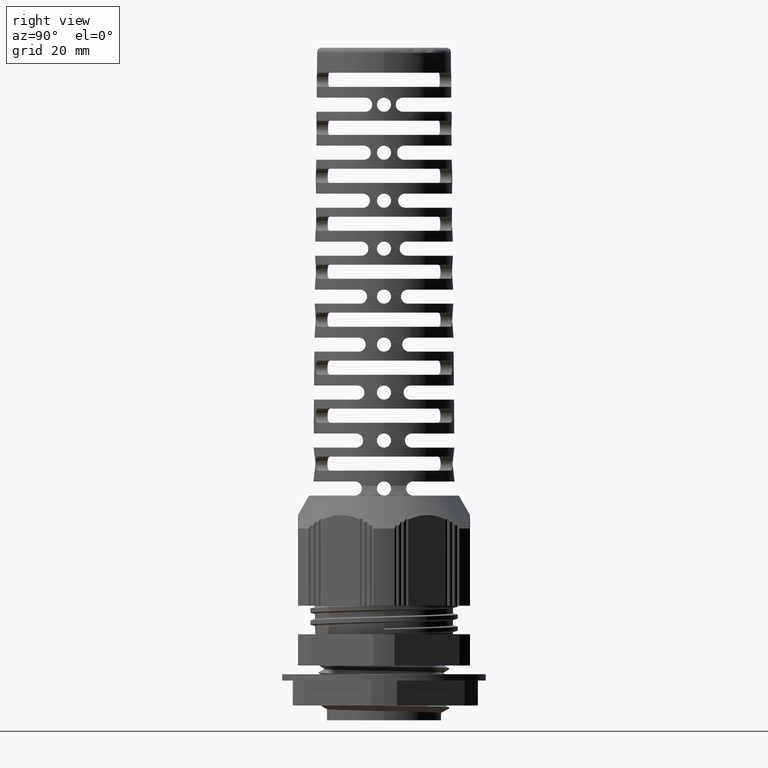
[diagram: clean part render]
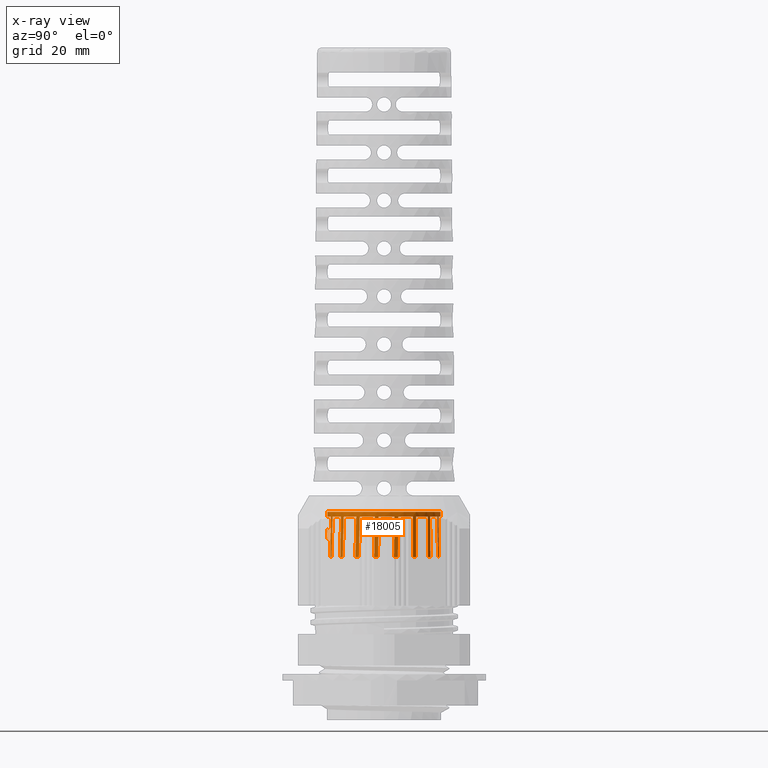
[diagram: x-ray — body ghosted, one internal face saturated and labeled with its STEP entity id]
A machine part, right view, then the same camera in x-ray: the body is ghosted and one INTERNAL B-rep face — a face not visible from any outside direction — is saturated and labeled: STEP entity #18005.
In plain terms, the highlighted conical surface has half-angle 1 deg.
Its self-contained STEP definition (entity closure, byte-faithful):
#19 = B_SPLINE_CURVE_WITH_KNOTS ( 'NONE', 3,
 ( #12706, #12711, #12725, #12697 ),
 .UNSPECIFIED., .F., .F.,
 ( 4, 4 ),
 ( 8.606371440566386500E-016, 0.007745463629420377100 ),
 .UNSPECIFIED. ) ;
#25 = B_SPLINE_CURVE_WITH_KNOTS ( 'NONE', 3,
 ( #11277, #11404, #11317, #11323 ),
 .UNSPECIFIED., .F., .F.,
 ( 4, 4 ),
 ( 0.0000000000000000000, 0.007745266584049276600 ),
 .UNSPECIFIED. ) ;
#29 = B_SPLINE_CURVE_WITH_KNOTS ( 'NONE', 3,
 ( #28067, #28081, #28082, #28083 ),
 .UNSPECIFIED., .F., .F.,
 ( 4, 4 ),
 ( 1.846204061899816400E-015, 0.007745463628746135200 ),
 .UNSPECIFIED. ) ;
#33 = B_SPLINE_CURVE_WITH_KNOTS ( 'NONE', 3,
 ( #28079, #28080, #28091, #28089 ),
 .UNSPECIFIED., .F., .F.,
 ( 4, 4 ),
 ( 2.047514077544858200E-015, 0.007745463628489268600 ),
 .UNSPECIFIED. ) ;
#39 = B_SPLINE_CURVE_WITH_KNOTS ( 'NONE', 3,
 ( #6497, #6502, #6504, #6500 ),
 .UNSPECIFIED., .F., .F.,
 ( 4, 4 ),
 ( 0.0000000000000000000, 0.007745266585278603100 ),
 .UNSPECIFIED. ) ;
#41 = B_SPLINE_CURVE_WITH_KNOTS ( 'NONE', 3,
 ( #8292, #8296, #8182, #8202 ),
 .UNSPECIFIED., .F., .F.,
 ( 4, 4 ),
 ( 0.0000000000000000000, 0.007745266585041397900 ),
 .UNSPECIFIED. ) ;
#43 = B_SPLINE_CURVE_WITH_KNOTS ( 'NONE', 3,
 ( #12607, #12603, #12609, #12611 ),
 .UNSPECIFIED., .F., .F.,
 ( 4, 4 ),
 ( 1.318846268912613700E-016, 0.007745463629418319700 ),
 .UNSPECIFIED. ) ;
#44 = B_SPLINE_CURVE_WITH_KNOTS ( 'NONE', 3,
 ( #12803, #12804, #12780, #12784 ),
 .UNSPECIFIED., .F., .F.,
 ( 4, 4 ),
 ( 2.547140953177153500E-015, 0.007745266584887284200 ),
 .UNSPECIFIED. ) ;
#50 = B_SPLINE_CURVE_WITH_KNOTS ( 'NONE', 3,
 ( #28193, #28229, #28232, #28233 ),
 .UNSPECIFIED., .F., .F.,
 ( 4, 4 ),
 ( 4.860322466063819700E-017, 0.007745463628346591100 ),
 .UNSPECIFIED. ) ;
#51 = B_SPLINE_CURVE_WITH_KNOTS ( 'NONE', 3,
 ( #11604, #11596, #11624, #11512 ),
 .UNSPECIFIED., .F., .F.,
 ( 4, 4 ),
 ( 1.728211039446828200E-015, 0.007745463628330847600 ),
 .UNSPECIFIED. ) ;
#52 = B_SPLINE_CURVE_WITH_KNOTS ( 'NONE', 3,
 ( #6484, #6493, #6487, #6488 ),
 .UNSPECIFIED., .F., .F.,
 ( 4, 4 ),
 ( 2.984423355069149100E-015, 0.007745266583814524300 ),
 .UNSPECIFIED. ) ;
#53 = B_SPLINE_CURVE_WITH_KNOTS ( 'NONE', 3,
 ( #12599, #12583, #12586, #12593 ),
 .UNSPECIFIED., .F., .F.,
 ( 4, 4 ),
 ( 1.200733890950348800E-015, 0.007745463629416220700 ),
 .UNSPECIFIED. ) ;
#57 = B_SPLINE_CURVE_WITH_KNOTS ( 'NONE', 3,
 ( #12868, #12872, #12887, #12885 ),
 .UNSPECIFIED., .F., .F.,
 ( 4, 4 ),
 ( 5.899596634123517400E-016, 0.007745463629416670900 ),
 .UNSPECIFIED. ) ;
#60 = B_SPLINE_CURVE_WITH_KNOTS ( 'NONE', 3,
 ( #28027, #28033, #28025, #28026 ),
 .UNSPECIFIED., .F., .F.,
 ( 4, 4 ),
 ( 0.0000000000000000000, 0.007745266584336102700 ),
 .UNSPECIFIED. ) ;
#61 = B_SPLINE_CURVE_WITH_KNOTS ( 'NONE', 3,
 ( #11325, #11305, #11377, #11320 ),
 .UNSPECIFIED., .F., .F.,
 ( 4, 4 ),
 ( 1.457526898192884100E-015, 0.007745463629083929200 ),
 .UNSPECIFIED. ) ;
#62 = B_SPLINE_CURVE_WITH_KNOTS ( 'NONE', 3,
 ( #11380, #11297, #11328, #11280 ),
 .UNSPECIFIED., .F., .F.,
 ( 4, 4 ),
 ( 9.772197026616723300E-015, 0.007745266583868504500 ),
 .UNSPECIFIED. ) ;
#63 = B_SPLINE_CURVE_WITH_KNOTS ( 'NONE', 3,
 ( #12874, #12890, #12875, #12886 ),
 .UNSPECIFIED., .F., .F.,
 ( 4, 4 ),
 ( 0.0000000000000000000, 0.007745266585175490300 ),
 .UNSPECIFIED. ) ;
#3774 = EDGE_LOOP ( 'NONE', ( #5747, #5755, #5611, #5562, #5714, #5558, #5517, #5735, #5582, #5718, #5520, #5579, #5543, #5670, #5651, #5643, #5588, #5682, #5505, #5539, #5631, #5663, #5590, #5617, #5635, #5633, #5646, #5601, #5629, #7315, #7328, #7303, #7329, #7287, #7314, #7280, #7272, #7313, #7298, #7316 ) ) ;
#5505 = ORIENTED_EDGE ( 'NONE', *, *, #9916, .T. ) ;
#5517 = ORIENTED_EDGE ( 'NONE', *, *, #9895, .T. ) ;
#5520 = ORIENTED_EDGE ( 'NONE', *, *, #9889, .T. ) ;
#5539 = ORIENTED_EDGE ( 'NONE', *, *, #9896, .T. ) ;
#5543 = ORIENTED_EDGE ( 'NONE', *, *, #9948, .T. ) ;
#5558 = ORIENTED_EDGE ( 'NONE', *, *, #9927, .T. ) ;
#5562 = ORIENTED_EDGE ( 'NONE', *, *, #9867, .T. ) ;
#5579 = ORIENTED_EDGE ( 'NONE', *, *, #9923, .T. ) ;
#5582 = ORIENTED_EDGE ( 'NONE', *, *, #9941, .T. ) ;
#5588 = ORIENTED_EDGE ( 'NONE', *, *, #9952, .T. ) ;
#5590 = ORIENTED_EDGE ( 'NONE', *, *, #9950, .T. ) ;
#5601 = ORIENTED_EDGE ( 'NONE', *, *, #9943, .T. ) ;
#5611 = ORIENTED_EDGE ( 'NONE', *, *, #9870, .T. ) ;
#5617 = ORIENTED_EDGE ( 'NONE', *, *, #9985, .T. ) ;
#5629 = ORIENTED_EDGE ( 'NONE', *, *, #9954, .T. ) ;
#5631 = ORIENTED_EDGE ( 'NONE', *, *, #9926, .T. ) ;
#5633 = ORIENTED_EDGE ( 'NONE', *, *, #9978, .T. ) ;
#5635 = ORIENTED_EDGE ( 'NONE', *, *, #9908, .T. ) ;
#5643 = ORIENTED_EDGE ( 'NONE', *, *, #9918, .T. ) ;
#5646 = ORIENTED_EDGE ( 'NONE', *, *, #9894, .T. ) ;
#5651 = ORIENTED_EDGE ( 'NONE', *, *, #9915, .T. ) ;
#5663 = ORIENTED_EDGE ( 'NONE', *, *, #9919, .T. ) ;
#5670 = ORIENTED_EDGE ( 'NONE', *, *, #9903, .T. ) ;
#5682 = ORIENTED_EDGE ( 'NONE', *, *, #9902, .T. ) ;
#5714 = ORIENTED_EDGE ( 'NONE', *, *, #9939, .T. ) ;
#5718 = ORIENTED_EDGE ( 'NONE', *, *, #9891, .T. ) ;
#5735 = ORIENTED_EDGE ( 'NONE', *, *, #9930, .T. ) ;
#5747 = ORIENTED_EDGE ( 'NONE', *, *, #9879, .T. ) ;
#5755 = ORIENTED_EDGE ( 'NONE', *, *, #9871, .T. ) ;
#6484 = CARTESIAN_POINT ( 'NONE',  ( 3.815180258274659200, -10.15711078988246300, 39.04349424353245700 ) ) ;
#6487 = CARTESIAN_POINT ( 'NONE',  ( 3.786548012332399800, -10.26396778647021300, 33.88116838323959000 ) ) ;
#6488 = CARTESIAN_POINT ( 'NONE',  ( 3.772297953280795600, -10.31714973085987500, 31.29999999999553900 ) ) ;
#6493 = CARTESIAN_POINT ( 'NONE',  ( 3.800841287179331100, -10.21062455853670400, 36.46233321087266400 ) ) ;
#6497 = CARTESIAN_POINT ( 'NONE',  ( 3.606267329563777000, 10.23314887737931800, 39.04349424510185400 ) ) ;
#6500 = CARTESIAN_POINT ( 'NONE',  ( 3.741988129368834800, 10.32818160450002600, 31.30000000001476600 ) ) ;
#6501 = CARTESIAN_POINT ( 'NONE',  ( -5.856426454897700800E-012, 10.98516319477641900, 31.30000000000715600 ) ) ;
#6502 = CARTESIAN_POINT ( 'NONE',  ( 3.651649606146142100, 10.26492588954519100, 36.46233321186613100 ) ) ;
#6503 = LINE ( 'NONE', #6501, #26481 ) ;
#6504 = CARTESIAN_POINT ( 'NONE',  ( 3.696887255899251800, 10.29660163291499400, 33.88116838374345700 ) ) ;
#6505 = DIRECTION ( 'NONE',  ( 0.0000000000000000000, 0.01745240643728329300, -0.9998476951563911600 ) ) ;
#6524 = CARTESIAN_POINT ( 'NONE',  ( -5.856426454897700800E-012, -3.471528620124786400E-011, 31.29999999999844100 ) ) ;
#6525 = DIRECTION ( 'NONE',  ( -0.0000000000000000000, -0.0000000000000000000, 1.000000000000000000 ) ) ;
#6526 = DIRECTION ( 'NONE',  ( -1.000000000000000000, 0.0000000000000000000, 0.0000000000000000000 ) ) ;
#7035 = VERTEX_POINT ( 'NONE', #13496 ) ;
#7036 = VERTEX_POINT ( 'NONE', #13574 ) ;
#7037 = VERTEX_POINT ( 'NONE', #13529 ) ;
#7039 = VERTEX_POINT ( 'NONE', #13552 ) ;
#7041 = VERTEX_POINT ( 'NONE', #13553 ) ;
#7042 = VERTEX_POINT ( 'NONE', #13557 ) ;
#7044 = VERTEX_POINT ( 'NONE', #13575 ) ;
#7045 = VERTEX_POINT ( 'NONE', #13563 ) ;
#7046 = VERTEX_POINT ( 'NONE', #13572 ) ;
#7047 = VERTEX_POINT ( 'NONE', #13581 ) ;
#7048 = VERTEX_POINT ( 'NONE', #13525 ) ;
#7049 = VERTEX_POINT ( 'NONE', #13532 ) ;
#7052 = VERTEX_POINT ( 'NONE', #13549 ) ;
#7053 = VERTEX_POINT ( 'NONE', #13550 ) ;
#7055 = VERTEX_POINT ( 'NONE', #13547 ) ;
#7056 = VERTEX_POINT ( 'NONE', #13551 ) ;
#7057 = VERTEX_POINT ( 'NONE', #13578 ) ;
#7058 = VERTEX_POINT ( 'NONE', #13544 ) ;
#7064 = VERTEX_POINT ( 'NONE', #13533 ) ;
#7065 = VERTEX_POINT ( 'NONE', #13579 ) ;
#7067 = VERTEX_POINT ( 'NONE', #13559 ) ;
#7069 = VERTEX_POINT ( 'NONE', #13530 ) ;
#7071 = VERTEX_POINT ( 'NONE', #13531 ) ;
#7075 = VERTEX_POINT ( 'NONE', #13543 ) ;
#7076 = VERTEX_POINT ( 'NONE', #13561 ) ;
#7077 = VERTEX_POINT ( 'NONE', #13537 ) ;
#7078 = VERTEX_POINT ( 'NONE', #13526 ) ;
#7080 = VERTEX_POINT ( 'NONE', #13564 ) ;
#7084 = VERTEX_POINT ( 'NONE', #13567 ) ;
#7087 = VERTEX_POINT ( 'NONE', #13583 ) ;
#7091 = VERTEX_POINT ( 'NONE', #13527 ) ;
#7092 = VERTEX_POINT ( 'NONE', #13585 ) ;
#7093 = VERTEX_POINT ( 'NONE', #13569 ) ;
#7094 = VERTEX_POINT ( 'NONE', #13586 ) ;
#7095 = VERTEX_POINT ( 'NONE', #13535 ) ;
#7103 = VERTEX_POINT ( 'NONE', #14410 ) ;
#7115 = VERTEX_POINT ( 'NONE', #14150 ) ;
#7119 = VERTEX_POINT ( 'NONE', #14163 ) ;
#7122 = VERTEX_POINT ( 'NONE', #14154 ) ;
#7147 = VERTEX_POINT ( 'NONE', #14176 ) ;
#7272 = ORIENTED_EDGE ( 'NONE', *, *, #9946, .T. ) ;
#7280 = ORIENTED_EDGE ( 'NONE', *, *, #9934, .T. ) ;
#7287 = ORIENTED_EDGE ( 'NONE', *, *, #10003, .T. ) ;
#7298 = ORIENTED_EDGE ( 'NONE', *, *, #9907, .T. ) ;
#7303 = ORIENTED_EDGE ( 'NONE', *, *, #10005, .T. ) ;
#7313 = ORIENTED_EDGE ( 'NONE', *, *, #9958, .T. ) ;
#7314 = ORIENTED_EDGE ( 'NONE', *, *, #9893, .T. ) ;
#7315 = ORIENTED_EDGE ( 'NONE', *, *, #9962, .T. ) ;
#7316 = ORIENTED_EDGE ( 'NONE', *, *, #9935, .F. ) ;
#7328 = ORIENTED_EDGE ( 'NONE', *, *, #9964, .T. ) ;
#7329 = ORIENTED_EDGE ( 'NONE', *, *, #9924, .T. ) ;
#7620 = CARTESIAN_POINT ( 'NONE',  ( -5.856426454897700800E-012, -3.471528620124786400E-011, 31.30000000000221400 ) ) ;
#7641 = DIRECTION ( 'NONE',  ( -0.0000000000000000000, -0.0000000000000000000, 1.000000000000000000 ) ) ;
#7777 = DIRECTION ( 'NONE',  ( -1.000000000000000000, -1.687538997430220000E-014, 0.0000000000000000000 ) ) ;
#8182 = CARTESIAN_POINT ( 'NONE',  ( 9.450507890757647200, 5.511341141392184900, 33.88116838365995400 ) ) ;
#8202 = CARTESIAN_POINT ( 'NONE',  ( 9.505356378706052200, 5.506542520486944700, 31.30000000000811200 ) ) ;
#8247 = CARTESIAN_POINT ( 'NONE',  ( -5.856426454897700800E-012, -3.471528620124786400E-011, 31.29999999999888500 ) ) ;
#8265 = DIRECTION ( 'NONE',  ( -0.0000000000000000000, -0.0000000000000000000, 1.000000000000000000 ) ) ;
#8273 = DIRECTION ( 'NONE',  ( -1.000000000000000000, 0.0000000000000000000, 0.0000000000000000000 ) ) ;
#8292 = CARTESIAN_POINT ( 'NONE',  ( 9.340302354705176700, 5.520982876451005200, 39.04349424480187000 ) ) ;
#8296 = CARTESIAN_POINT ( 'NONE',  ( 9.395493065180703600, 5.516154314954239800, 36.46233321170247900 ) ) ;
#9867 = EDGE_CURVE ( 'NONE', #7077, #7103, #28306, .T. ) ;
#9870 = EDGE_CURVE ( 'NONE', #7044, #7077, #26446, .T. ) ;
#9871 = EDGE_CURVE ( 'NONE', #7035, #7044, #19279, .T. ) ;
#9879 = EDGE_CURVE ( 'NONE', #7067, #7035, #26440, .T. ) ;
#9889 = EDGE_CURVE ( 'NONE', #7052, #7069, #26453, .T. ) ;
#9891 = EDGE_CURVE ( 'NONE', #7049, #7052, #50, .T. ) ;
#9893 = EDGE_CURVE ( 'NONE', #7080, #7048, #26445, .T. ) ;
#9894 = EDGE_CURVE ( 'NONE', #7039, #7147, #26401, .T. ) ;
#9895 = EDGE_CURVE ( 'NONE', #7046, #7093, #26414, .T. ) ;
#9896 = EDGE_CURVE ( 'NONE', #7078, #7047, #60, .T. ) ;
#9902 = EDGE_CURVE ( 'NONE', #7065, #7037, #29, .T. ) ;
#9903 = EDGE_CURVE ( 'NONE', #7076, #7071, #33, .T. ) ;
#9907 = EDGE_CURVE ( 'NONE', #7053, #7055, #26470, .T. ) ;
#9908 = EDGE_CURVE ( 'NONE', #7045, #7075, #26488, .T. ) ;
#9915 = EDGE_CURVE ( 'NONE', #7071, #7091, #26490, .T. ) ;
#9916 = EDGE_CURVE ( 'NONE', #7037, #7078, #26471, .T. ) ;
#9918 = EDGE_CURVE ( 'NONE', #7091, #7056, #25, .T. ) ;
#9919 = EDGE_CURVE ( 'NONE', #7122, #7036, #61, .T. ) ;
#9923 = EDGE_CURVE ( 'NONE', #7069, #7094, #62, .T. ) ;
#9924 = EDGE_CURVE ( 'NONE', #7041, #7115, #26501, .T. ) ;
#9926 = EDGE_CURVE ( 'NONE', #7047, #7122, #26494, .T. ) ;
#9927 = EDGE_CURVE ( 'NONE', #7064, #7046, #51, .T. ) ;
#9930 = EDGE_CURVE ( 'NONE', #7093, #7058, #52, .T. ) ;
#9934 = EDGE_CURVE ( 'NONE', #7048, #7042, #39, .T. ) ;
#9935 = EDGE_CURVE ( 'NONE', #7067, #7055, #6503, .T. ) ;
#9939 = EDGE_CURVE ( 'NONE', #7103, #7064, #26506, .T. ) ;
#9941 = EDGE_CURVE ( 'NONE', #7058, #7049, #26507, .T. ) ;
#9943 = EDGE_CURVE ( 'NONE', #7147, #7119, #41, .T. ) ;
#9946 = EDGE_CURVE ( 'NONE', #7042, #7095, #26486, .T. ) ;
#9948 = EDGE_CURVE ( 'NONE', #7094, #7076, #26516, .T. ) ;
#9950 = EDGE_CURVE ( 'NONE', #7036, #7087, #26462, .T. ) ;
#9952 = EDGE_CURVE ( 'NONE', #7056, #7065, #26519, .T. ) ;
#9954 = EDGE_CURVE ( 'NONE', #7119, #7057, #26537, .T. ) ;
#9958 = EDGE_CURVE ( 'NONE', #7095, #7053, #53, .T. ) ;
#9962 = EDGE_CURVE ( 'NONE', #7057, #7084, #43, .T. ) ;
#9964 = EDGE_CURVE ( 'NONE', #7084, #7092, #26548, .T. ) ;
#9978 = EDGE_CURVE ( 'NONE', #7075, #7039, #19, .T. ) ;
#9985 = EDGE_CURVE ( 'NONE', #7087, #7045, #44, .T. ) ;
#10003 = EDGE_CURVE ( 'NONE', #7115, #7080, #57, .T. ) ;
#10005 = EDGE_CURVE ( 'NONE', #7092, #7041, #63, .T. ) ;
#11269 = CARTESIAN_POINT ( 'NONE',  ( -5.856426454897700800E-012, -3.471528620124786400E-011, 31.30000000001187400 ) ) ;
#11272 = DIRECTION ( 'NONE',  ( -0.0000000000000000000, 3.158302603635797300E-016, 1.000000000000000000 ) ) ;
#11277 = CARTESIAN_POINT ( 'NONE',  ( 9.451462602263662300, -5.328447680005238500, 39.04349424378695900 ) ) ;
#11280 = CARTESIAN_POINT ( 'NONE',  ( 7.073473579748346100, -8.404747582987763400, 31.29999999999687100 ) ) ;
#11294 = DIRECTION ( 'NONE',  ( 0.0000000000000000000, -1.000000000000000000, -6.913312728224621600E-013 ) ) ;
#11297 = CARTESIAN_POINT ( 'NONE',  ( 7.063861785278448700, -8.294884269477012900, 36.46233321091001000 ) ) ;
#11305 = CARTESIAN_POINT ( 'NONE',  ( 10.88410196873541100, -1.106180100410499000, 33.88117012204697400 ) ) ;
#11309 = DIRECTION ( 'NONE',  ( 0.0000000000000000000, -1.000000000000000000, -6.913312728224621600E-013 ) ) ;
#11317 = CARTESIAN_POINT ( 'NONE',  ( 9.498215382784360700, -5.428709341381376100, 33.88116838332118200 ) ) ;
#11320 = CARTESIAN_POINT ( 'NONE',  ( 10.80160086775101800, -1.023678999429673800, 39.04349424428910000 ) ) ;
#11323 = CARTESIAN_POINT ( 'NONE',  ( 9.521483899147902700, -5.478608835751201900, 31.29999999999887100 ) ) ;
#11325 = CARTESIAN_POINT ( 'NONE',  ( 10.92509928517197100, -1.147177416845273300, 31.30000000000701700 ) ) ;
#11328 = CARTESIAN_POINT ( 'NONE',  ( 7.068674958841803000, -8.349899095046641400, 33.88116838325894500 ) ) ;
#11345 = CARTESIAN_POINT ( 'NONE',  ( -1.713906794265085400E-012, -5.361072570953570400E-011, 39.04349424395232400 ) ) ;
#11352 = CARTESIAN_POINT ( 'NONE',  ( -1.713906794265085400E-012, -5.361072570935822900E-011, 39.04349424369561900 ) ) ;
#11377 = CARTESIAN_POINT ( 'NONE',  ( 10.84293935473652200, -1.065017486413395900, 36.46233500514544100 ) ) ;
#11380 = CARTESIAN_POINT ( 'NONE',  ( 7.059033223780659200, -8.239693559011962900, 39.04349424359455200 ) ) ;
#11386 = DIRECTION ( 'NONE',  ( 0.0000000000000000000, -6.913358774340849800E-013, 1.000000000000000000 ) ) ;
#11388 = DIRECTION ( 'NONE',  ( 0.0000000000000000000, -6.913358774340849800E-013, 1.000000000000000000 ) ) ;
#11404 = CARTESIAN_POINT ( 'NONE',  ( 9.474876300577053100, -5.378658518071247000, 36.46233321103250100 ) ) ;
#11512 = CARTESIAN_POINT ( 'NONE',  ( 0.8675512913877208000, -10.81526027231745600, 39.04349424352963600 ) ) ;
#11543 = CARTESIAN_POINT ( 'NONE',  ( -5.856426454897700800E-012, -3.471528620124786400E-011, 31.30000000000465800 ) ) ;
#11546 = DIRECTION ( 'NONE',  ( -1.000000000000000000, 0.0000000000000000000, 0.0000000000000000000 ) ) ;
#11571 = DIRECTION ( 'NONE',  ( 1.865174681370266100E-014, 1.000000000000000000, 0.0000000000000000000 ) ) ;
#11578 = DIRECTION ( 'NONE',  ( -0.0000000000000000000, -0.0000000000000000000, 1.000000000000000000 ) ) ;
#11596 = CARTESIAN_POINT ( 'NONE',  ( 0.8006297333517146100, -10.91083416203108500, 33.88117012178953800 ) ) ;
#11604 = CARTESIAN_POINT ( 'NONE',  ( 0.7673743675627440200, -10.95832774639429600, 31.30000000000084600 ) ) ;
#11624 = CARTESIAN_POINT ( 'NONE',  ( 0.8340191818411499800, -10.86314908772646400, 36.46233500463701200 ) ) ;
#12583 = CARTESIAN_POINT ( 'NONE',  ( 2.979379211491540500, 10.52666184475146600, 33.88117012216484600 ) ) ;
#12586 = CARTESIAN_POINT ( 'NONE',  ( 2.931694137182255600, 10.49327239625823100, 36.46233500537404400 ) ) ;
#12593 = CARTESIAN_POINT ( 'NONE',  ( 2.883805321764701300, 10.45974028670514100, 39.04349424473232900 ) ) ;
#12599 = CARTESIAN_POINT ( 'NONE',  ( 3.026872795859451200, 10.55991721054426200, 31.30000000001150100 ) ) ;
#12603 = CARTESIAN_POINT ( 'NONE',  ( 9.048744694094550000, 6.148782769048160000, 33.88117012216298500 ) ) ;
#12607 = CARTESIAN_POINT ( 'NONE',  ( 9.106503027570354900, 6.143729569646660900, 31.30000000001026500 ) ) ;
#12609 = CARTESIAN_POINT ( 'NONE',  ( 8.990753484114701900, 6.153856342503764200, 36.46233500537288600 ) ) ;
#12611 = CARTESIAN_POINT ( 'NONE',  ( 8.932514498631478600, 6.158951593507012500, 39.04349424468547600 ) ) ;
#12632 = DIRECTION ( 'NONE',  ( 0.0000000000000000000, -6.913358774340849800E-013, 1.000000000000000000 ) ) ;
#12636 = DIRECTION ( 'NONE',  ( 0.0000000000000000000, -1.000000000000000000, -6.913312728224621600E-013 ) ) ;
#12638 = CARTESIAN_POINT ( 'NONE',  ( -1.713906794265085400E-012, -5.361072570999983700E-011, 39.04349424462368700 ) ) ;
#12697 = CARTESIAN_POINT ( 'NONE',  ( 10.50030346618669200, 2.732421475114476200, 39.04349424464975700 ) ) ;
#12706 = CARTESIAN_POINT ( 'NONE',  ( 10.65859296414783600, 2.658609870015037600, 31.30000000000882200 ) ) ;
#12711 = CARTESIAN_POINT ( 'NONE',  ( 10.60604618037522300, 2.683112837697837300, 33.88117012216150000 ) ) ;
#12725 = CARTESIAN_POINT ( 'NONE',  ( 10.55328753260709500, 2.707714599184232200, 36.46233500537208300 ) ) ;
#12780 = CARTESIAN_POINT ( 'NONE',  ( 10.76556221473152800, 1.946702537901484200, 33.88116838360613800 ) ) ;
#12784 = CARTESIAN_POINT ( 'NONE',  ( 10.81546170910718500, 1.923434021537838300, 31.30000000000565700 ) ) ;
#12803 = CARTESIAN_POINT ( 'NONE',  ( 10.66530055334632000, 1.993455318421180300, 39.04349424460966100 ) ) ;
#12804 = CARTESIAN_POINT ( 'NONE',  ( 10.71551139141555000, 1.970041620108902600, 36.46233321159730400 ) ) ;
#12868 = CARTESIAN_POINT ( 'NONE',  ( 6.456034428196511900, 8.887824811385531400, 31.30000000001124100 ) ) ;
#12872 = CARTESIAN_POINT ( 'NONE',  ( 6.400031052456800000, 8.872818752080874600, 33.88117012216413600 ) ) ;
#12874 = CARTESIAN_POINT ( 'NONE',  ( 6.888725843904850000, 8.382598418545065000, 39.04349424497267800 ) ) ;
#12875 = CARTESIAN_POINT ( 'NONE',  ( 6.995582840516035200, 8.411230664496217800, 33.88116838370782300 ) ) ;
#12885 = CARTESIAN_POINT ( 'NONE',  ( 6.287332452667446800, 8.842621253275629200, 39.04349424471412500 ) ) ;
#12886 = CARTESIAN_POINT ( 'NONE',  ( 7.048764784913180000, 8.425480723551130400, 31.30000000001351900 ) ) ;
#12887 = CARTESIAN_POINT ( 'NONE',  ( 6.343801876047794300, 8.857752189669227500, 36.46233500537349000 ) ) ;
#12890 = CARTESIAN_POINT ( 'NONE',  ( 6.942239612575016300, 8.396937389645966500, 36.46233321179615000 ) ) ;
#13496 = CARTESIAN_POINT ( 'NONE',  ( -5.855090405648399700E-012, -10.83417688321663700, 39.95000000001447700 ) ) ;
#13525 = CARTESIAN_POINT ( 'NONE',  ( 3.606267329563777000, 10.23314887737931800, 39.04349424510185400 ) ) ;
#13526 = CARTESIAN_POINT ( 'NONE',  ( 10.70390610218139900, -1.774512371283909000, 39.04349424408093200 ) ) ;
#13527 = CARTESIAN_POINT ( 'NONE',  ( 9.451462602263662300, -5.328447680005238500, 39.04349424378695900 ) ) ;
#13529 = CARTESIAN_POINT ( 'NONE',  ( 9.800065790014103900, -4.656308678756256600, 39.04349424394907700 ) ) ;
#13530 = CARTESIAN_POINT ( 'NONE',  ( 7.059033223780659200, -8.239693559011962900, 39.04349424359455200 ) ) ;
#13531 = CARTESIAN_POINT ( 'NONE',  ( 7.616498144434142900, -7.727318811634067900, 39.04349424369023300 ) ) ;
#13532 = CARTESIAN_POINT ( 'NONE',  ( 4.469064856993862900, -10.03500222826399300, 31.29999999999854400 ) ) ;
#13533 = CARTESIAN_POINT ( 'NONE',  ( 0.7673743675627440200, -10.95832774639429600, 31.30000000000084600 ) ) ;
#13535 = CARTESIAN_POINT ( 'NONE',  ( 3.026872795859451200, 10.55991721054426200, 31.30000000001150100 ) ) ;
#13537 = CARTESIAN_POINT ( 'NONE',  ( 0.1111602475592623500, -10.84943055650598400, 39.04349424375350000 ) ) ;
#13543 = CARTESIAN_POINT ( 'NONE',  ( 10.65859296414783600, 2.658609870015037600, 31.30000000000882200 ) ) ;
#13544 = CARTESIAN_POINT ( 'NONE',  ( 3.772297953280795600, -10.31714973085987500, 31.29999999999553900 ) ) ;
#13547 = CARTESIAN_POINT ( 'NONE',  ( -5.856426454897700800E-012, 10.84999999996528100, 39.04349424462822100 ) ) ;
#13549 = CARTESIAN_POINT ( 'NONE',  ( 4.514268415094321100, -9.866300252755550600, 39.04349424354478500 ) ) ;
#13550 = CARTESIAN_POINT ( 'NONE',  ( 2.883805321764701300, 10.45974028670514100, 39.04349424473232900 ) ) ;
#13551 = CARTESIAN_POINT ( 'NONE',  ( 9.521483899147902700, -5.478608835751201900, 31.29999999999887100 ) ) ;
#13552 = CARTESIAN_POINT ( 'NONE',  ( 10.50030346618669200, 2.732421475114476200, 39.04349424464975700 ) ) ;
#13553 = CARTESIAN_POINT ( 'NONE',  ( 7.048764784913180000, 8.425480723551130400, 31.30000000001351900 ) ) ;
#13557 = CARTESIAN_POINT ( 'NONE',  ( 3.741988129368834800, 10.32818160450002600, 31.30000000001476600 ) ) ;
#13559 = CARTESIAN_POINT ( 'NONE',  ( -5.856426454897700800E-012, 10.83417688314721300, 39.95000000001447700 ) ) ;
#13561 = CARTESIAN_POINT ( 'NONE',  ( 7.631720168298579100, -7.901307340553114700, 31.30000000000331200 ) ) ;
#13563 = CARTESIAN_POINT ( 'NONE',  ( 10.81546170910718500, 1.923434021537838300, 31.30000000000565700 ) ) ;
#13564 = CARTESIAN_POINT ( 'NONE',  ( 6.287332452667446800, 8.842621253275629200, 39.04349424471412500 ) ) ;
#13567 = CARTESIAN_POINT ( 'NONE',  ( 8.932514498631478600, 6.158951593507012500, 39.04349424468547600 ) ) ;
#13569 = CARTESIAN_POINT ( 'NONE',  ( 3.815180258274659200, -10.15711078988246300, 39.04349424353245700 ) ) ;
#13572 = CARTESIAN_POINT ( 'NONE',  ( 0.8675512913877208000, -10.81526027231745600, 39.04349424352963600 ) ) ;
#13574 = CARTESIAN_POINT ( 'NONE',  ( 10.80160086775101800, -1.023678999429673800, 39.04349424428910000 ) ) ;
#13575 = CARTESIAN_POINT ( 'NONE',  ( -5.855097713120623600E-012, -10.85000000005181600, 39.04349424364806300 ) ) ;
#13578 = CARTESIAN_POINT ( 'NONE',  ( 9.106503027570354900, 6.143729569646660900, 31.30000000001026500 ) ) ;
#13579 = CARTESIAN_POINT ( 'NONE',  ( 9.873877395114282900, -4.814598176702158000, 31.30000000000511700 ) ) ;
#13581 = CARTESIAN_POINT ( 'NONE',  ( 10.82106273817677800, -1.891669007273935300, 31.30000000000132600 ) ) ;
#13583 = CARTESIAN_POINT ( 'NONE',  ( 10.66530055334632000, 1.993455318421180300, 39.04349424460966100 ) ) ;
#13585 = CARTESIAN_POINT ( 'NONE',  ( 6.888725843904850000, 8.382598418545065000, 39.04349424497267800 ) ) ;
#13586 = CARTESIAN_POINT ( 'NONE',  ( 7.073473579748346100, -8.404747582987763400, 31.29999999999687100 ) ) ;
#14150 = CARTESIAN_POINT ( 'NONE',  ( 6.456034428196511900, 8.887824811385531400, 31.30000000001124100 ) ) ;
#14154 = CARTESIAN_POINT ( 'NONE',  ( 10.92509928517197100, -1.147177416845273300, 31.30000000000701700 ) ) ;
#14163 = CARTESIAN_POINT ( 'NONE',  ( 9.505356378706052200, 5.506542520486944700, 31.30000000000811200 ) ) ;
#14176 = CARTESIAN_POINT ( 'NONE',  ( 9.340302354705176700, 5.520982876451005200, 39.04349424480187000 ) ) ;
#14410 = CARTESIAN_POINT ( 'NONE',  ( 0.01612752045862704500, -10.98515135628466800, 31.29999999999509400 ) ) ;
#15497 = AXIS2_PLACEMENT_3D ( 'NONE', #24238, #24242, #24228 ) ;
#15509 = CONICAL_SURFACE ( 'NONE', #15497, 10.98516319481113400, 0.01745329251994339300 ) ;
#18005 = ADVANCED_FACE ( 'NONE', ( #24273 ), #15509, .T. ) ;
#18208 = DIRECTION ( 'NONE',  ( 0.0000000000000000000, -6.913358774340849800E-013, 1.000000000000000000 ) ) ;
#18212 = DIRECTION ( 'NONE',  ( 0.0000000000000000000, -1.000000000000000000, -6.913312728224621600E-013 ) ) ;
#18234 = CARTESIAN_POINT ( 'NONE',  ( -1.713906794265085400E-012, -5.361072570976903400E-011, 39.04349424428983900 ) ) ;
#18236 = CARTESIAN_POINT ( 'NONE',  ( -5.856426454897700800E-012, -3.471528620124786400E-011, 31.30000000001309600 ) ) ;
#18242 = DIRECTION ( 'NONE',  ( -0.0000000000000000000, 3.158302603635797300E-016, 1.000000000000000000 ) ) ;
#18248 = CARTESIAN_POINT ( 'NONE',  ( -5.856426454897700800E-012, -3.471528620124786400E-011, 31.30000000000021700 ) ) ;
#18250 = DIRECTION ( 'NONE',  ( -0.0000000000000000000, -0.0000000000000000000, 1.000000000000000000 ) ) ;
#18251 = DIRECTION ( 'NONE',  ( -1.000000000000000000, 1.509903313490204100E-014, 0.0000000000000000000 ) ) ;
#18253 = DIRECTION ( 'NONE',  ( -1.953992523340277100E-014, 1.000000000000000000, 0.0000000000000000000 ) ) ;
#19264 = CARTESIAN_POINT ( 'NONE',  ( 0.1111602475592623500, -10.84943055650598400, 39.04349424375350000 ) ) ;
#19267 = CARTESIAN_POINT ( 'NONE',  ( 0.07938323540648333000, -10.89481283307040900, 36.46233321116673700 ) ) ;
#19275 = CARTESIAN_POINT ( 'NONE',  ( 0.04770749204017161300, -10.94005048281929700, 33.88116838338640200 ) ) ;
#19277 = CARTESIAN_POINT ( 'NONE',  ( 0.01612752045862704500, -10.98515135628466800, 31.29999999999509400 ) ) ;
#19279 = LINE ( 'NONE', #19290, #26418 ) ;
#19288 = DIRECTION ( 'NONE',  ( 0.0000000000000000000, -1.000000000000000000, -6.913312728224621600E-013 ) ) ;
#19290 = CARTESIAN_POINT ( 'NONE',  ( -5.855081160403236900E-012, -10.98516319484585000, 31.30000000000717000 ) ) ;
#19291 = CARTESIAN_POINT ( 'NONE',  ( -1.713906794265085400E-012, -5.361072570933054400E-011, 39.04349424365556600 ) ) ;
#19293 = DIRECTION ( 'NONE',  ( 0.0000000000000000000, -6.913358774340849800E-013, 1.000000000000000000 ) ) ;
#19294 = DIRECTION ( 'NONE',  ( 2.137303368083802900E-018, -0.01745240643728392500, -0.9998476951563911600 ) ) ;
#24228 = DIRECTION ( 'NONE',  ( 0.0000000000000000000, 1.000000000000000000, -6.316605207271595600E-016 ) ) ;
#24238 = CARTESIAN_POINT ( 'NONE',  ( -5.856426454897700800E-012, -3.471528620124786400E-011, 31.30000000000716300 ) ) ;
#24242 = DIRECTION ( 'NONE',  ( 0.0000000000000000000, -3.158302603635797300E-016, -1.000000000000000000 ) ) ;
#24273 = FACE_OUTER_BOUND ( 'NONE', #3774, .T. ) ;
#26401 = CIRCLE ( 'NONE', #26403, 10.85000000000000000 ) ;
#26403 = AXIS2_PLACEMENT_3D ( 'NONE', #28246, #28240, #28253 ) ;
#26413 = AXIS2_PLACEMENT_3D ( 'NONE', #28191, #28227, #28228 ) ;
#26414 = CIRCLE ( 'NONE', #26441, 10.85000000000000000 ) ;
#26418 = VECTOR ( 'NONE', #19294, 1000.000000000000100 ) ;
#26438 = AXIS2_PLACEMENT_3D ( 'NONE', #28272, #28274, #28281 ) ;
#26440 = CIRCLE ( 'NONE', #26438, 10.83417688318192500 ) ;
#26441 = AXIS2_PLACEMENT_3D ( 'NONE', #28262, #28260, #28224 ) ;
#26444 = AXIS2_PLACEMENT_3D ( 'NONE', #19291, #19293, #19288 ) ;
#26445 = CIRCLE ( 'NONE', #26450, 10.85000000000000000 ) ;
#26446 = CIRCLE ( 'NONE', #26444, 10.85000000000000000 ) ;
#26450 = AXIS2_PLACEMENT_3D ( 'NONE', #28248, #28238, #28247 ) ;
#26453 = CIRCLE ( 'NONE', #26413, 10.85000000000000000 ) ;
#26462 = CIRCLE ( 'NONE', #26463, 10.85000000000000000 ) ;
#26463 = AXIS2_PLACEMENT_3D ( 'NONE', #18234, #18208, #18212 ) ;
#26464 = AXIS2_PLACEMENT_3D ( 'NONE', #28199, #28211, #28212 ) ;
#26470 = CIRCLE ( 'NONE', #26499, 10.85000000000000000 ) ;
#26471 = CIRCLE ( 'NONE', #26474, 10.85000000000000000 ) ;
#26474 = AXIS2_PLACEMENT_3D ( 'NONE', #11345, #11386, #11294 ) ;
#26476 = AXIS2_PLACEMENT_3D ( 'NONE', #11543, #11578, #11546 ) ;
#26479 = AXIS2_PLACEMENT_3D ( 'NONE', #11352, #11388, #11309 ) ;
#26481 = VECTOR ( 'NONE', #6505, 1000.000000000000100 ) ;
#26482 = AXIS2_PLACEMENT_3D ( 'NONE', #8247, #8265, #8273 ) ;
#26485 = AXIS2_PLACEMENT_3D ( 'NONE', #6524, #6525, #6526 ) ;
#26486 = CIRCLE ( 'NONE', #26487, 10.98516319481103100 ) ;
#26487 = AXIS2_PLACEMENT_3D ( 'NONE', #18236, #18242, #18253 ) ;
#26488 = CIRCLE ( 'NONE', #26464, 10.98516319481113300 ) ;
#26490 = CIRCLE ( 'NONE', #26479, 10.85000000000000000 ) ;
#26494 = CIRCLE ( 'NONE', #26476, 10.98516319481117700 ) ;
#26495 = AXIS2_PLACEMENT_3D ( 'NONE', #11269, #11272, #11571 ) ;
#26499 = AXIS2_PLACEMENT_3D ( 'NONE', #28123, #28156, #28164 ) ;
#26501 = CIRCLE ( 'NONE', #26495, 10.98516319481105400 ) ;
#26506 = CIRCLE ( 'NONE', #26485, 10.98516319481128500 ) ;
#26507 = CIRCLE ( 'NONE', #26482, 10.98516319481127800 ) ;
#26516 = CIRCLE ( 'NONE', #26517, 10.98516319481125500 ) ;
#26517 = AXIS2_PLACEMENT_3D ( 'NONE', #18248, #18250, #18251 ) ;
#26519 = CIRCLE ( 'NONE', #26522, 10.98516319481122000 ) ;
#26522 = AXIS2_PLACEMENT_3D ( 'NONE', #7620, #7641, #7777 ) ;
#26527 = AXIS2_PLACEMENT_3D ( 'NONE', #12638, #12632, #12636 ) ;
#26537 = CIRCLE ( 'NONE', #26541, 10.98516319481109000 ) ;
#26541 = AXIS2_PLACEMENT_3D ( 'NONE', #28239, #28234, #28261 ) ;
#26548 = CIRCLE ( 'NONE', #26527, 10.85000000000000000 ) ;
#28025 = CARTESIAN_POINT ( 'NONE',  ( 10.78213085283554000, -1.852737121934481000, 33.88116838341922200 ) ) ;
#28026 = CARTESIAN_POINT ( 'NONE',  ( 10.82106273817677800, -1.891669007273935300, 31.30000000000132600 ) ) ;
#28027 = CARTESIAN_POINT ( 'NONE',  ( 10.70390610218139900, -1.774512371283909000, 39.04349424408093200 ) ) ;
#28033 = CARTESIAN_POINT ( 'NONE',  ( 10.74308089974578300, -1.813687168846508200, 36.46233321122614500 ) ) ;
#28067 = CARTESIAN_POINT ( 'NONE',  ( 9.873877395114282900, -4.814598176702158000, 31.30000000000511700 ) ) ;
#28079 = CARTESIAN_POINT ( 'NONE',  ( 7.631720168298579100, -7.901307340553114700, 31.30000000000331200 ) ) ;
#28080 = CARTESIAN_POINT ( 'NONE',  ( 7.626666968895642100, -7.843549007083054500, 33.88117012184449800 ) ) ;
#28081 = CARTESIAN_POINT ( 'NONE',  ( 9.849374427431161600, -4.762051392934465000, 33.88117012193210800 ) ) ;
#28082 = CARTESIAN_POINT ( 'NONE',  ( 9.824772665944445600, -4.709292745171262100, 36.46233500491798900 ) ) ;
#28083 = CARTESIAN_POINT ( 'NONE',  ( 9.800065790014103900, -4.656308678756256600, 39.04349424394907700 ) ) ;
#28089 = CARTESIAN_POINT ( 'NONE',  ( 7.616498144434142900, -7.727318811634067900, 39.04349424369023300 ) ) ;
#28091 = CARTESIAN_POINT ( 'NONE',  ( 7.621593395438599900, -7.785557797108937800, 36.46233500474478000 ) ) ;
#28123 = CARTESIAN_POINT ( 'NONE',  ( -1.713906794265085400E-012, -5.361072570999778800E-011, 39.04349424462071700 ) ) ;
#28156 = DIRECTION ( 'NONE',  ( 0.0000000000000000000, -6.913358774340849800E-013, 1.000000000000000000 ) ) ;
#28164 = DIRECTION ( 'NONE',  ( 0.0000000000000000000, -1.000000000000000000, -6.913312728224621600E-013 ) ) ;
#28191 = CARTESIAN_POINT ( 'NONE',  ( -1.713906794265085400E-012, -5.361072570925867600E-011, 39.04349424355160600 ) ) ;
#28193 = CARTESIAN_POINT ( 'NONE',  ( 4.469064856993862900, -10.03500222826399300, 31.29999999999854400 ) ) ;
#28199 = CARTESIAN_POINT ( 'NONE',  ( -5.856426454897700800E-012, -3.471528620124786400E-011, 31.30000000000732300 ) ) ;
#28211 = DIRECTION ( 'NONE',  ( -0.0000000000000000000, 3.158302603635797300E-016, 1.000000000000000000 ) ) ;
#28212 = DIRECTION ( 'NONE',  ( 0.0000000000000000000, 1.000000000000000000, 0.0000000000000000000 ) ) ;
#28224 = DIRECTION ( 'NONE',  ( 0.0000000000000000000, -1.000000000000000000, -6.913312728224621600E-013 ) ) ;
#28227 = DIRECTION ( 'NONE',  ( 0.0000000000000000000, -6.913358774340849800E-013, 1.000000000000000000 ) ) ;
#28228 = DIRECTION ( 'NONE',  ( 0.0000000000000000000, -1.000000000000000000, -6.913312728224621600E-013 ) ) ;
#28229 = CARTESIAN_POINT ( 'NONE',  ( 4.484070916295714000, -9.978998852529878500, 33.88117012179414900 ) ) ;
#28232 = CARTESIAN_POINT ( 'NONE',  ( 4.499137478704548200, -9.922769676126485200, 36.46233500464684600 ) ) ;
#28233 = CARTESIAN_POINT ( 'NONE',  ( 4.514268415094321100, -9.866300252755550600, 39.04349424354478500 ) ) ;
#28234 = DIRECTION ( 'NONE',  ( -0.0000000000000000000, 3.158302603635797300E-016, 1.000000000000000000 ) ) ;
#28238 = DIRECTION ( 'NONE',  ( 0.0000000000000000000, -6.913358774340849800E-013, 1.000000000000000000 ) ) ;
#28239 = CARTESIAN_POINT ( 'NONE',  ( -5.856426454897700800E-012, -3.471528620124786400E-011, 31.30000000000976400 ) ) ;
#28240 = DIRECTION ( 'NONE',  ( 0.0000000000000000000, -6.913358774340849800E-013, 1.000000000000000000 ) ) ;
#28246 = CARTESIAN_POINT ( 'NONE',  ( -1.713906794265085400E-012, -5.361072571000144600E-011, 39.04349424462601100 ) ) ;
#28247 = DIRECTION ( 'NONE',  ( 0.0000000000000000000, -1.000000000000000000, -6.913312728224621600E-013 ) ) ;
#28248 = CARTESIAN_POINT ( 'NONE',  ( -1.713906794265085400E-012, -5.361072570999855700E-011, 39.04349424462183300 ) ) ;
#28253 = DIRECTION ( 'NONE',  ( 0.0000000000000000000, -1.000000000000000000, -6.913312728224621600E-013 ) ) ;
#28260 = DIRECTION ( 'NONE',  ( 0.0000000000000000000, -6.913358774340849800E-013, 1.000000000000000000 ) ) ;
#28261 = DIRECTION ( 'NONE',  ( 2.486899575160349100E-014, 1.000000000000000000, 0.0000000000000000000 ) ) ;
#28262 = CARTESIAN_POINT ( 'NONE',  ( -1.713906794265085400E-012, -5.361072570924869200E-011, 39.04349424353716800 ) ) ;
#28272 = CARTESIAN_POINT ( 'NONE',  ( -5.856426454897700800E-012, -3.471255426949571800E-011, 39.95000000001447700 ) ) ;
#28274 = DIRECTION ( 'NONE',  ( 0.0000000000000000000, -3.158302603635797300E-016, -1.000000000000000000 ) ) ;
#28281 = DIRECTION ( 'NONE',  ( 0.0000000000000000000, 1.000000000000000000, 0.0000000000000000000 ) ) ;
#28306 = B_SPLINE_CURVE_WITH_KNOTS ( 'NONE', 3,
 ( #19264, #19267, #19275, #19277 ),
 .UNSPECIFIED., .F., .F.,
 ( 4, 4 ),
 ( 2.173550903116808200E-013, 0.007745266584256432100 ),
 .UNSPECIFIED. ) ;